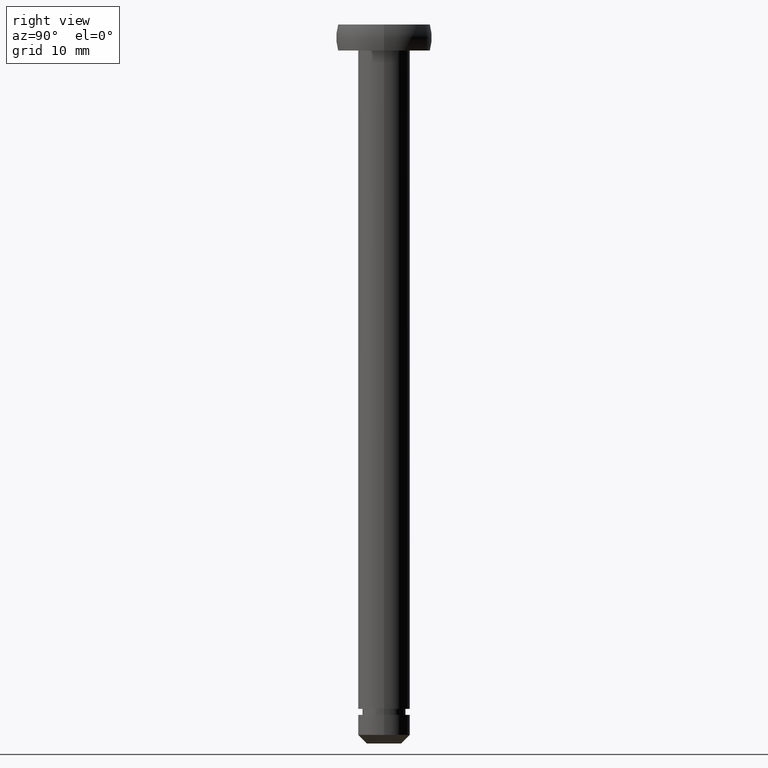
[diagram: clean part render]
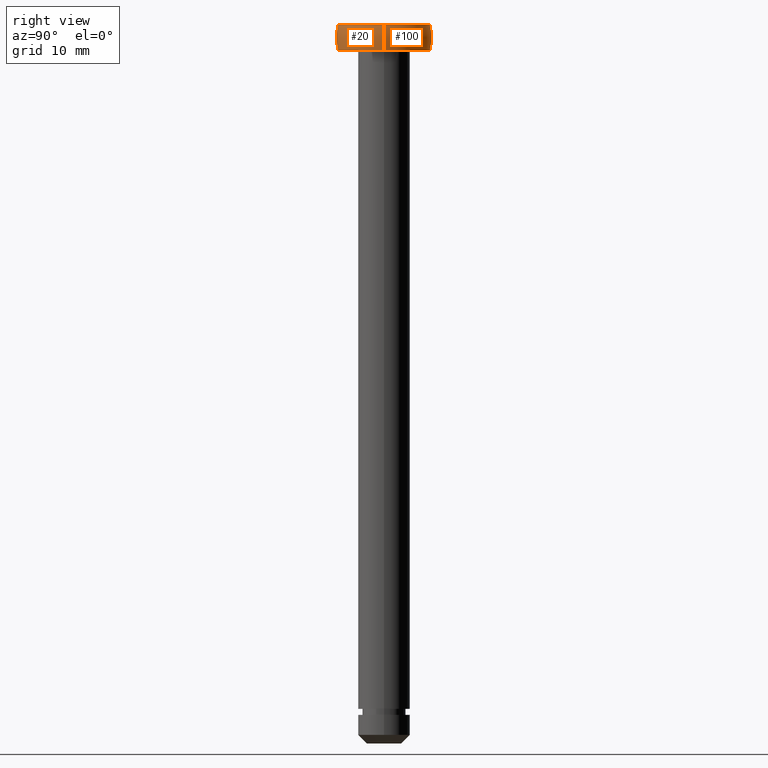
[diagram: same view with one multi-face feature highlighted, each face labeled with its STEP entity id]
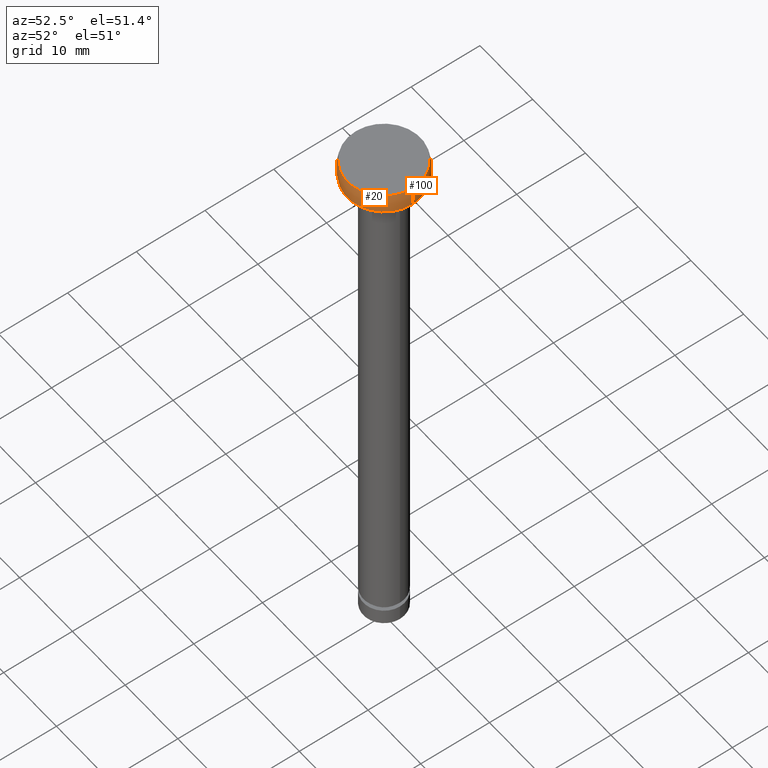
[diagram: same view with one multi-face feature highlighted, each face labeled with its STEP entity id]
A machine part, right view. The highlighted faces form ONE feature: a constant-radius fillet chain: 2 tangent blend faces with common blend radius 6.6428 mm. The faces share edges in the B-rep.
A second angle (auxiliary view) of the same feature is appended — it is thin or edge-on in the first view.
Their STEP definitions:
[1] entity #100 (Torus):
#2 = CARTESIAN_POINT ( 'NONE',  ( -5.328427118366801300, 0.0000000000000000000, 83.00000000000000000 ) ) ;
#21 = VERTEX_POINT ( 'NONE', #397 ) ;
#22 = CIRCLE ( 'NONE', #458, 6.642766791230089400 ) ;
#26 = CIRCLE ( 'NONE', #42, 5.328427118366801300 ) ;
#28 = DIRECTION ( 'NONE',  ( -1.000000000000000000, -1.224646799147353200E-016, 0.0000000000000000000 ) ) ;
#33 = CARTESIAN_POINT ( 'NONE',  ( 5.328427118366795100, 6.525441214997858000E-016, 79.99999998195649200 ) ) ;
#36 = DIRECTION ( 'NONE',  ( 0.0000000000000000000, 0.0000000000000000000, -1.000000000000000000 ) ) ;
#37 = CARTESIAN_POINT ( 'NONE',  ( 1.142766791230102100, 0.0000000000000000000, 81.49999999097829600 ) ) ;
#39 = DIRECTION ( 'NONE',  ( 0.0000000000000000000, 0.0000000000000000000, -1.000000000000000000 ) ) ;
#42 = AXIS2_PLACEMENT_3D ( 'NONE', #99, #39, #55 ) ;
#55 = DIRECTION ( 'NONE',  ( -1.000000000000000000, 0.0000000000000000000, 0.0000000000000000000 ) ) ;
#73 = VERTEX_POINT ( 'NONE', #346 ) ;
#76 = DIRECTION ( 'NONE',  ( -1.000000000000000000, 0.0000000000000000000, 0.0000000000000000000 ) ) ;
#80 = CIRCLE ( 'NONE', #337, 5.328427118366795100 ) ;
#99 = CARTESIAN_POINT ( 'NONE',  ( 0.0000000000000000000, 0.0000000000000000000, 83.00000000000000000 ) ) ;
#100 = ADVANCED_FACE ( 'NONE', ( #155 ), #272, .T. ) ;
#106 = EDGE_CURVE ( 'NONE', #293, #73, #22, .T. ) ;
#129 = EDGE_CURVE ( 'NONE', #73, #270, #80, .T. ) ;
#155 = FACE_OUTER_BOUND ( 'NONE', #414, .T. ) ;
#158 = EDGE_CURVE ( 'NONE', #21, #270, #447, .T. ) ;
#220 = CARTESIAN_POINT ( 'NONE',  ( 0.0000000000000000000, 0.0000000000000000000, 81.49999999097829600 ) ) ;
#225 = DIRECTION ( 'NONE',  ( -1.000000000000000000, 0.0000000000000000000, 0.0000000000000000000 ) ) ;
#233 = ORIENTED_EDGE ( 'NONE', *, *, #106, .F. ) ;
#234 = EDGE_CURVE ( 'NONE', #293, #21, #26, .T. ) ;
#236 = ORIENTED_EDGE ( 'NONE', *, *, #158, .T. ) ;
#246 = AXIS2_PLACEMENT_3D ( 'NONE', #220, #287, #76 ) ;
#249 = DIRECTION ( 'NONE',  ( -1.224646799147353200E-016, 1.000000000000000000, 0.0000000000000000000 ) ) ;
#270 = VERTEX_POINT ( 'NONE', #33 ) ;
#272 = TOROIDAL_SURFACE ( 'NONE', #246, -1.142766791230102100, 6.642766791230087600 ) ;
#287 = DIRECTION ( 'NONE',  ( 0.0000000000000000000, 0.0000000000000000000, -1.000000000000000000 ) ) ;
#290 = DIRECTION ( 'NONE',  ( -0.0000000000000000000, -1.000000000000000000, -0.0000000000000000000 ) ) ;
#293 = VERTEX_POINT ( 'NONE', #2 ) ;
#312 = AXIS2_PLACEMENT_3D ( 'NONE', #457, #249, #28 ) ;
#318 = CARTESIAN_POINT ( 'NONE',  ( 0.0000000000000000000, 0.0000000000000000000, 79.99999998195649200 ) ) ;
#337 = AXIS2_PLACEMENT_3D ( 'NONE', #318, #36, #225 ) ;
#341 = ORIENTED_EDGE ( 'NONE', *, *, #234, .T. ) ;
#346 = CARTESIAN_POINT ( 'NONE',  ( -5.328427118366795100, 0.0000000000000000000, 79.99999998195649200 ) ) ;
#397 = CARTESIAN_POINT ( 'NONE',  ( 5.328427118366801300, 6.525441214997862000E-016, 83.00000000000000000 ) ) ;
#404 = ORIENTED_EDGE ( 'NONE', *, *, #129, .F. ) ;
#414 = EDGE_LOOP ( 'NONE', ( #341, #236, #404, #233 ) ) ;
#447 = CIRCLE ( 'NONE', #312, 6.642766791230087600 ) ;
#457 = CARTESIAN_POINT ( 'NONE',  ( -1.142766791230102100, -1.399485693051835900E-016, 81.49999999097829600 ) ) ;
#458 = AXIS2_PLACEMENT_3D ( 'NONE', #37, #290, #468 ) ;
#468 = DIRECTION ( 'NONE',  ( 0.0000000000000000000, 0.0000000000000000000, -1.000000000000000000 ) ) ;
[2] entity #20 (Torus):
#2 = CARTESIAN_POINT ( 'NONE',  ( -5.328427118366801300, 0.0000000000000000000, 83.00000000000000000 ) ) ;
#7 = FACE_OUTER_BOUND ( 'NONE', #44, .T. ) ;
#20 = ADVANCED_FACE ( 'NONE', ( #7 ), #172, .T. ) ;
#21 = VERTEX_POINT ( 'NONE', #397 ) ;
#22 = CIRCLE ( 'NONE', #458, 6.642766791230089400 ) ;
#27 = CARTESIAN_POINT ( 'NONE',  ( 0.0000000000000000000, 0.0000000000000000000, 79.99999998195649200 ) ) ;
#28 = DIRECTION ( 'NONE',  ( -1.000000000000000000, -1.224646799147353200E-016, 0.0000000000000000000 ) ) ;
#33 = CARTESIAN_POINT ( 'NONE',  ( 5.328427118366795100, 6.525441214997858000E-016, 79.99999998195649200 ) ) ;
#37 = CARTESIAN_POINT ( 'NONE',  ( 1.142766791230102100, 0.0000000000000000000, 81.49999999097829600 ) ) ;
#44 = EDGE_LOOP ( 'NONE', ( #386, #388, #340, #204 ) ) ;
#58 = DIRECTION ( 'NONE',  ( -1.000000000000000000, 0.0000000000000000000, 0.0000000000000000000 ) ) ;
#63 = AXIS2_PLACEMENT_3D ( 'NONE', #156, #178, #58 ) ;
#73 = VERTEX_POINT ( 'NONE', #346 ) ;
#106 = EDGE_CURVE ( 'NONE', #293, #73, #22, .T. ) ;
#156 = CARTESIAN_POINT ( 'NONE',  ( 0.0000000000000000000, 0.0000000000000000000, 83.00000000000000000 ) ) ;
#158 = EDGE_CURVE ( 'NONE', #21, #270, #447, .T. ) ;
#161 = CIRCLE ( 'NONE', #422, 5.328427118366795100 ) ;
#172 = TOROIDAL_SURFACE ( 'NONE', #237, -1.142766791230102100, 6.642766791230087600 ) ;
#178 = DIRECTION ( 'NONE',  ( 0.0000000000000000000, 0.0000000000000000000, -1.000000000000000000 ) ) ;
#182 = DIRECTION ( 'NONE',  ( -1.000000000000000000, 0.0000000000000000000, 0.0000000000000000000 ) ) ;
#196 = DIRECTION ( 'NONE',  ( 0.0000000000000000000, 0.0000000000000000000, -1.000000000000000000 ) ) ;
#204 = ORIENTED_EDGE ( 'NONE', *, *, #350, .F. ) ;
#237 = AXIS2_PLACEMENT_3D ( 'NONE', #385, #196, #362 ) ;
#249 = DIRECTION ( 'NONE',  ( -1.224646799147353200E-016, 1.000000000000000000, 0.0000000000000000000 ) ) ;
#270 = VERTEX_POINT ( 'NONE', #33 ) ;
#274 = EDGE_CURVE ( 'NONE', #21, #293, #440, .T. ) ;
#290 = DIRECTION ( 'NONE',  ( -0.0000000000000000000, -1.000000000000000000, -0.0000000000000000000 ) ) ;
#293 = VERTEX_POINT ( 'NONE', #2 ) ;
#312 = AXIS2_PLACEMENT_3D ( 'NONE', #457, #249, #28 ) ;
#340 = ORIENTED_EDGE ( 'NONE', *, *, #106, .T. ) ;
#346 = CARTESIAN_POINT ( 'NONE',  ( -5.328427118366795100, 0.0000000000000000000, 79.99999998195649200 ) ) ;
#350 = EDGE_CURVE ( 'NONE', #270, #73, #161, .T. ) ;
#362 = DIRECTION ( 'NONE',  ( -1.000000000000000000, 0.0000000000000000000, 0.0000000000000000000 ) ) ;
#384 = DIRECTION ( 'NONE',  ( 0.0000000000000000000, 0.0000000000000000000, -1.000000000000000000 ) ) ;
#385 = CARTESIAN_POINT ( 'NONE',  ( 0.0000000000000000000, 0.0000000000000000000, 81.49999999097829600 ) ) ;
#386 = ORIENTED_EDGE ( 'NONE', *, *, #158, .F. ) ;
#388 = ORIENTED_EDGE ( 'NONE', *, *, #274, .T. ) ;
#397 = CARTESIAN_POINT ( 'NONE',  ( 5.328427118366801300, 6.525441214997862000E-016, 83.00000000000000000 ) ) ;
#422 = AXIS2_PLACEMENT_3D ( 'NONE', #27, #384, #182 ) ;
#440 = CIRCLE ( 'NONE', #63, 5.328427118366801300 ) ;
#447 = CIRCLE ( 'NONE', #312, 6.642766791230087600 ) ;
#457 = CARTESIAN_POINT ( 'NONE',  ( -1.142766791230102100, -1.399485693051835900E-016, 81.49999999097829600 ) ) ;
#458 = AXIS2_PLACEMENT_3D ( 'NONE', #37, #290, #468 ) ;
#468 = DIRECTION ( 'NONE',  ( 0.0000000000000000000, 0.0000000000000000000, -1.000000000000000000 ) ) ;